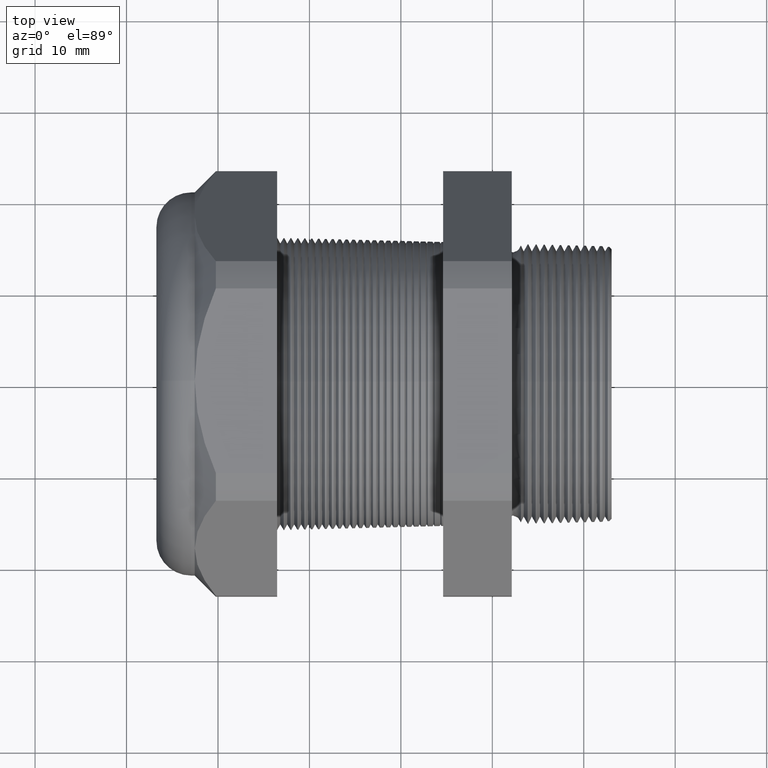
[diagram: clean part render]
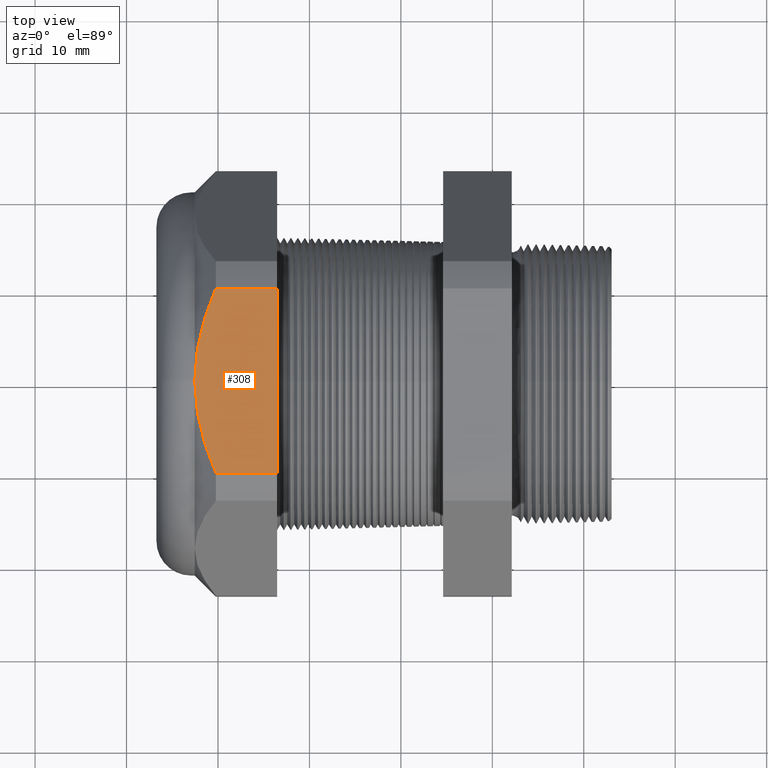
[diagram: same view with one face highlighted and labeled with its STEP entity id]
A machine part, top view. The second image highlights one B-rep face of the part: STEP entity #308.
In plain terms, the highlighted planar face has unit normal (0, 0, 1).
Its self-contained STEP definition (entity closure, byte-faithful):
#294 = EDGE_CURVE ( 'NONE', #911, #300, #2631, .T. ) ;
#295 = ORIENTED_EDGE ( 'NONE', *, *, #294, .F. ) ;
#298 = VERTEX_POINT ( 'NONE', #2623 ) ;
#300 = VERTEX_POINT ( 'NONE', #2622 ) ;
#302 = ORIENTED_EDGE ( 'NONE', *, *, #303, .F. ) ;
#303 = EDGE_CURVE ( 'NONE', #300, #298, #2675, .T. ) ;
#306 = EDGE_CURVE ( 'NONE', #915, #7364, #2669, .T. ) ;
#307 = ORIENTED_EDGE ( 'NONE', *, *, #306, .T. ) ;
#308 = ADVANCED_FACE ( 'NONE', ( #2671 ), #2670, .T. ) ;
#309 = ORIENTED_EDGE ( 'NONE', *, *, #908, .T. ) ;
#310 = EDGE_CURVE ( 'NONE', #7364, #298, #2650, .T. ) ;
#313 = ORIENTED_EDGE ( 'NONE', *, *, #310, .T. ) ;
#908 = EDGE_CURVE ( 'NONE', #911, #915, #3880, .T. ) ;
#911 = VERTEX_POINT ( 'NONE', #3872 ) ;
#912 = EDGE_LOOP ( 'NONE', ( #309, #307, #313, #302, #295 ) ) ;
#915 = VERTEX_POINT ( 'NONE', #3871 ) ;
#2622 = CARTESIAN_POINT ( 'NONE',  ( -1.320314960629920700, -0.3974582525247157800, 0.8249999999999995100 ) ) ;
#2623 = CARTESIAN_POINT ( 'NONE',  ( -1.583895669291338400, -0.3974582525247157800, 0.8249999999999995100 ) ) ;
#2628 = DIRECTION ( 'NONE',  ( 0.0000000000000000000, -1.000000000000000000, 0.0000000000000000000 ) ) ;
#2629 = VECTOR ( 'NONE', #2628, 39.37007874015748100 ) ;
#2630 = CARTESIAN_POINT ( 'NONE',  ( -1.320314960629921200, 0.6300000000000000000, 0.8249999999999998400 ) ) ;
#2631 = LINE ( 'NONE', #2630, #2629 ) ;
#2650 = B_SPLINE_CURVE_WITH_KNOTS ( 'NONE', 3,
 ( #2709, #2708, #2707, #2706, #2705, #2704, #2703, #2702 ),
 .UNSPECIFIED., .F., .F.,
 ( 4, 2, 2, 4 ),
 ( 0.02628477249763028900, 0.03145169048429692600, 0.03403514947763024200, 0.03661860847096356400 ),
 .UNSPECIFIED. ) ;
#2651 = DIRECTION ( 'NONE',  ( 1.000000000000000000, 0.0000000000000000000, 0.0000000000000000000 ) ) ;
#2652 = DIRECTION ( 'NONE',  ( 0.0000000000000000000, 0.0000000000000000000, 1.000000000000000000 ) ) ;
#2653 = CARTESIAN_POINT ( 'NONE',  ( -1.674645669291338300, 0.0000000000000000000, 0.8249999999999998400 ) ) ;
#2654 = CARTESIAN_POINT ( 'NONE',  ( -1.674645669291338500, 0.01724790322349472800, 0.8249999999999999600 ) ) ;
#2655 = CARTESIAN_POINT ( 'NONE',  ( -1.674100272712378200, 0.03452959885848697800, 0.8249999999999995100 ) ) ;
#2656 = CARTESIAN_POINT ( 'NONE',  ( -1.671960157067993600, 0.06877789273477966100, 0.8249999999999998400 ) ) ;
#2657 = CARTESIAN_POINT ( 'NONE',  ( -1.670366054130614700, 0.08580121451790293000, 0.8249999999999998400 ) ) ;
#2658 = CARTESIAN_POINT ( 'NONE',  ( -1.664091055263778700, 0.1365839895055926100, 0.8249999999999996200 ) ) ;
#2659 = CARTESIAN_POINT ( 'NONE',  ( -1.657915981696258100, 0.1700559661406342300, 0.8249999999999995100 ) ) ;
#2660 = CARTESIAN_POINT ( 'NONE',  ( -1.642067556645333800, 0.2363268582505959600, 0.8249999999999996200 ) ) ;
#2661 = CARTESIAN_POINT ( 'NONE',  ( -1.632396279186029600, 0.2691261727632997500, 0.8249999999999996200 ) ) ;
#2662 = CARTESIAN_POINT ( 'NONE',  ( -1.615649819087024100, 0.3178942610924214700, 0.8249999999999996200 ) ) ;
#2663 = CARTESIAN_POINT ( 'NONE',  ( -1.609692591764781100, 0.3340772355543881200, 0.8249999999999998400 ) ) ;
#2664 = CARTESIAN_POINT ( 'NONE',  ( -1.597217356314895300, 0.3660163646316653700, 0.8249999999999998400 ) ) ;
#2665 = CARTESIAN_POINT ( 'NONE',  ( -1.590685948154846800, 0.3818133443368524900, 0.8249999999999999600 ) ) ;
#2666 = CARTESIAN_POINT ( 'NONE',  ( -1.583895669291338400, 0.3974582525247153400, 0.8249999999999998400 ) ) ;
#2667 = CARTESIAN_POINT ( 'NONE',  ( 0.1200000000000000900, -0.3974582525247153400, 0.8249999999999998400 ) ) ;
#2668 = AXIS2_PLACEMENT_3D ( 'NONE', #2667, #2652, #2651 ) ;
#2669 = B_SPLINE_CURVE_WITH_KNOTS ( 'NONE', 3,
 ( #2666, #2665, #2664, #2663, #2662, #2661, #2660, #2659, #2658, #2657, #2656, #2655, #2654, #2653 ),
 .UNSPECIFIED., .F., .F.,
 ( 4, 2, 2, 2, 2, 2, 4 ),
 ( 0.01596490724554681900, 0.01725489040205725000, 0.01854487355856768200, 0.02112483987158855100, 0.02370480618460942000, 0.02499478934111985400, 0.02628477249763028900 ),
 .UNSPECIFIED. ) ;
#2670 = PLANE ( 'NONE',  #2668 ) ;
#2671 = FACE_OUTER_BOUND ( 'NONE', #912, .T. ) ;
#2672 = DIRECTION ( 'NONE',  ( -1.000000000000000000, 0.0000000000000000000, 0.0000000000000000000 ) ) ;
#2673 = VECTOR ( 'NONE', #2672, 39.37007874015748100 ) ;
#2674 = CARTESIAN_POINT ( 'NONE',  ( 0.1200000000000000900, -0.3974582525247157800, 0.8249999999999995100 ) ) ;
#2675 = LINE ( 'NONE', #2674, #2673 ) ;
#2702 = CARTESIAN_POINT ( 'NONE',  ( -1.583895669291338400, -0.3974582525247157800, 0.8249999999999995100 ) ) ;
#2703 = CARTESIAN_POINT ( 'NONE',  ( -1.597479196282689100, -0.3661615949177475800, 0.8249999999999995100 ) ) ;
#2704 = CARTESIAN_POINT ( 'NONE',  ( -1.610040375439864900, -0.3342307359203791600, 0.8249999999999998400 ) ) ;
#2705 = CARTESIAN_POINT ( 'NONE',  ( -1.632430573475722300, -0.2690253303980847400, 0.8249999999999998400 ) ) ;
#2706 = CARTESIAN_POINT ( 'NONE',  ( -1.642114605925984800, -0.2361608013186457000, 0.8249999999999995100 ) ) ;
#2707 = CARTESIAN_POINT ( 'NONE',  ( -1.665889473442875700, -0.1366528151466514000, 0.8249999999999998400 ) ) ;
#2708 = CARTESIAN_POINT ( 'NONE',  ( -1.674645669291338100, -0.06908501165149871800, 0.8249999999999994000 ) ) ;
#2709 = CARTESIAN_POINT ( 'NONE',  ( -1.674645669291338300, 0.0000000000000000000, 0.8249999999999998400 ) ) ;
#3871 = CARTESIAN_POINT ( 'NONE',  ( -1.583895669291338400, 0.3974582525247153400, 0.8249999999999998400 ) ) ;
#3872 = CARTESIAN_POINT ( 'NONE',  ( -1.320314960629920700, 0.3974582525247153400, 0.8249999999999998400 ) ) ;
#3877 = DIRECTION ( 'NONE',  ( -1.000000000000000000, 0.0000000000000000000, 0.0000000000000000000 ) ) ;
#3878 = VECTOR ( 'NONE', #3877, 39.37007874015748100 ) ;
#3879 = CARTESIAN_POINT ( 'NONE',  ( 0.1200000000000000900, 0.3974582525247153400, 0.8249999999999998400 ) ) ;
#3880 = LINE ( 'NONE', #3879, #3878 ) ;
#6478 = CARTESIAN_POINT ( 'NONE',  ( -1.674645669291338300, 0.0000000000000000000, 0.8249999999999998400 ) ) ;
#7364 = VERTEX_POINT ( 'NONE', #6478 ) ;